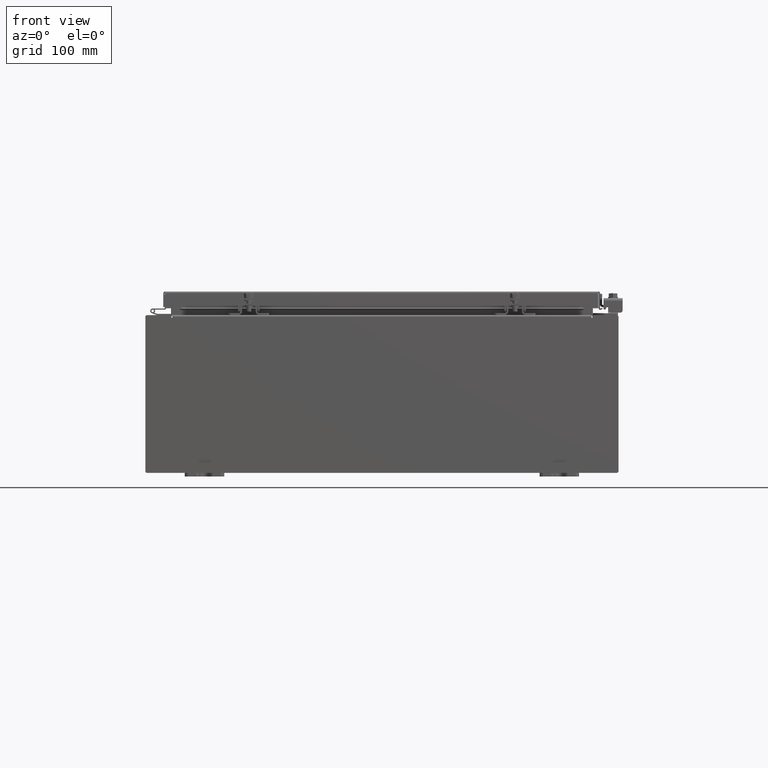
[diagram: clean part render]
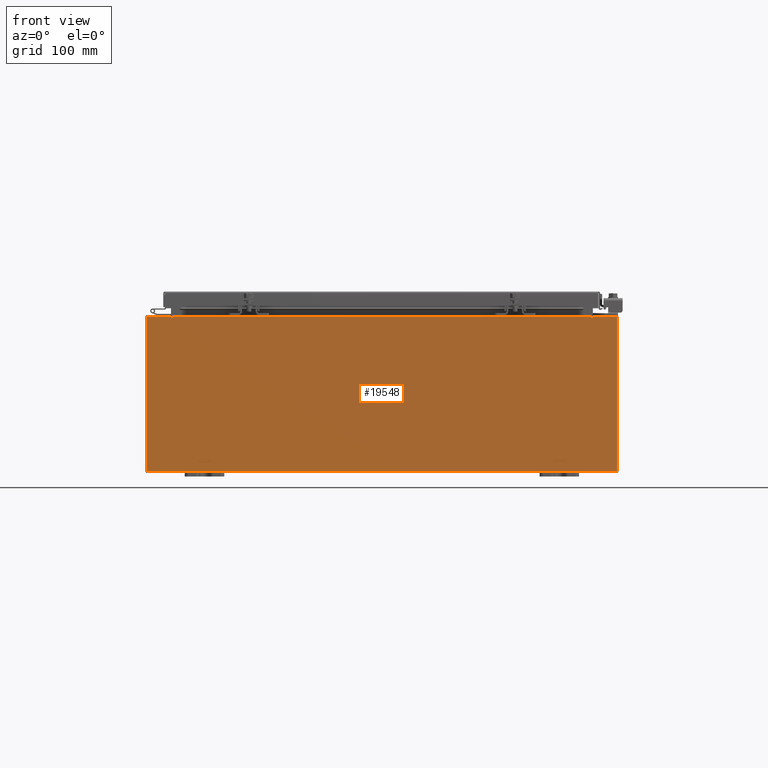
[diagram: same view with one face highlighted and labeled with its STEP entity id]
A machine part, front view. The second image highlights one B-rep face of the part: STEP entity #19548.
In plain terms, the highlighted planar face has unit normal (0, 1, -0).
Its self-contained STEP definition (entity closure, byte-faithful):
#285 = LINE ( 'NONE', #29721, #7047 ) ;
#970 = CARTESIAN_POINT ( 'NONE',  ( 11.92530000000000000, 0.0000000000000000000, 3.925300000000013800 ) ) ;
#1083 = DIRECTION ( 'NONE',  ( 1.000000000000000000, 3.225867722578232700E-016, 9.992007221626408900E-016 ) ) ;
#1207 = EDGE_CURVE ( 'NONE', #6455, #26388, #9352, .T. ) ;
#1700 = AXIS2_PLACEMENT_3D ( 'NONE', #26607, #3816, #21633 ) ;
#2052 = CARTESIAN_POINT ( 'NONE',  ( -11.92530000000000000, 0.0000000000000000000, 3.925299999999986700 ) ) ;
#3245 = DIRECTION ( 'NONE',  ( 1.000000000000000000, 3.225867722578232700E-016, 9.992007221626408900E-016 ) ) ;
#3624 = LINE ( 'NONE', #970, #16377 ) ;
#3816 = DIRECTION ( 'NONE',  ( -3.225867722578236700E-016, -1.000000000000000000, -2.013110121372518100E-016 ) ) ;
#4196 = CIRCLE ( 'NONE', #25568, 0.01867499999999949400 ) ;
#4510 = VERTEX_POINT ( 'NONE', #28172 ) ;
#4540 = CARTESIAN_POINT ( 'NONE',  ( 10.65587500000000200, 0.0000000000000000000, 3.874950000000012600 ) ) ;
#4613 = DIRECTION ( 'NONE',  ( 9.992007221626408900E-016, -2.013110121372521300E-016, 1.000000000000000000 ) ) ;
#4695 = CARTESIAN_POINT ( 'NONE',  ( -10.67455000000000200, 0.0000000000000000000, 3.874949999999993000 ) ) ;
#4705 = VECTOR ( 'NONE', #4613, 39.37007874015748100 ) ;
#4855 = CARTESIAN_POINT ( 'NONE',  ( -11.92530000000000000, 0.0000000000000000000, -3.925300000000012900 ) ) ;
#6291 = LINE ( 'NONE', #2052, #4705 ) ;
#6455 = VERTEX_POINT ( 'NONE', #29676 ) ;
#6866 = EDGE_CURVE ( 'NONE', #25807, #24355, #9511, .T. ) ;
#7047 = VECTOR ( 'NONE', #14519, 39.37007874015748100 ) ;
#7084 = DIRECTION ( 'NONE',  ( 0.0000000000000000000, 2.013110121372521000E-016, -1.000000000000000000 ) ) ;
#7261 = DIRECTION ( 'NONE',  ( 9.992007221626408900E-016, -2.013110121372521300E-016, 1.000000000000000000 ) ) ;
#7419 = DIRECTION ( 'NONE',  ( -1.000000000000000000, -3.225867722578232700E-016, -9.992007221626408900E-016 ) ) ;
#8277 = EDGE_CURVE ( 'NONE', #26388, #32245, #6291, .T. ) ;
#8797 = CIRCLE ( 'NONE', #12126, 0.01867499999999949400 ) ;
#9352 = LINE ( 'NONE', #4855, #28852 ) ;
#9511 = LINE ( 'NONE', #18503, #23044 ) ;
#10026 = EDGE_CURVE ( 'NONE', #21226, #4510, #4196, .T. ) ;
#10411 = CARTESIAN_POINT ( 'NONE',  ( -10.65587500000000200, 0.0000000000000000000, 3.874949999999993000 ) ) ;
#10418 = VERTEX_POINT ( 'NONE', #13991 ) ;
#10662 = LINE ( 'NONE', #17840, #16630 ) ;
#10679 = ORIENTED_EDGE ( 'NONE', *, *, #25739, .T. ) ;
#11268 = VERTEX_POINT ( 'NONE', #32282 ) ;
#11381 = EDGE_CURVE ( 'NONE', #4510, #11268, #29961, .T. ) ;
#11562 = LINE ( 'NONE', #12574, #18321 ) ;
#11635 = ORIENTED_EDGE ( 'NONE', *, *, #1207, .T. ) ;
#12126 = AXIS2_PLACEMENT_3D ( 'NONE', #10411, #28214, #12986 ) ;
#12355 = EDGE_CURVE ( 'NONE', #24355, #6455, #3624, .T. ) ;
#12440 = EDGE_CURVE ( 'NONE', #28440, #22031, #8797, .T. ) ;
#12574 = CARTESIAN_POINT ( 'NONE',  ( -10.63720000000000400, 0.0000000000000000000, -9.834652777191348400E-015 ) ) ;
#12863 = VECTOR ( 'NONE', #1083, 39.37007874015748100 ) ;
#12986 = DIRECTION ( 'NONE',  ( 0.0000000000000000000, 2.013110121372521000E-016, -1.000000000000000000 ) ) ;
#13809 = CARTESIAN_POINT ( 'NONE',  ( -11.92530000000000000, 0.0000000000000000000, 3.925299999999986700 ) ) ;
#13872 = CARTESIAN_POINT ( 'NONE',  ( -11.92530000000000000, 0.0000000000000000000, -3.925300000000012900 ) ) ;
#13991 = CARTESIAN_POINT ( 'NONE',  ( -10.67455000000000200, 0.0000000000000000000, 3.925299999999993400 ) ) ;
#14519 = DIRECTION ( 'NONE',  ( 9.992007221626408900E-016, -2.013110121372521300E-016, 1.000000000000000000 ) ) ;
#15041 = DIRECTION ( 'NONE',  ( 1.000000000000000000, 3.225867722578232700E-016, 9.992007221626408900E-016 ) ) ;
#15075 = FACE_OUTER_BOUND ( 'NONE', #22777, .T. ) ;
#16377 = VECTOR ( 'NONE', #28993, 39.37007874015748100 ) ;
#16630 = VECTOR ( 'NONE', #20413, 39.37007874015748100 ) ;
#17087 = CARTESIAN_POINT ( 'NONE',  ( -10.63720000000000400, 0.0000000000000000000, 3.912299999999993000 ) ) ;
#17770 = EDGE_CURVE ( 'NONE', #19817, #28440, #11562, .T. ) ;
#17840 = CARTESIAN_POINT ( 'NONE',  ( 10.67454999999983300, 0.0000000000000000000, -4.502085493558705900E-013 ) ) ;
#18167 = ORIENTED_EDGE ( 'NONE', *, *, #6866, .T. ) ;
#18321 = VECTOR ( 'NONE', #32874, 39.37007874015748100 ) ;
#18503 = CARTESIAN_POINT ( 'NONE',  ( -11.92530000000000000, 0.0000000000000000000, 3.925299999999986700 ) ) ;
#18746 = VECTOR ( 'NONE', #15041, 39.37007874015748100 ) ;
#18870 = CARTESIAN_POINT ( 'NONE',  ( -10.63720000000000400, 0.0000000000000000000, 3.874949999999993000 ) ) ;
#19053 = PLANE ( 'NONE',  #1700 ) ;
#19104 = CARTESIAN_POINT ( 'NONE',  ( 10.67455000000000200, 0.0000000000000000000, 3.925300000000012900 ) ) ;
#19472 = CARTESIAN_POINT ( 'NONE',  ( -11.92530000000000000, 0.0000000000000000000, 3.925299999999986700 ) ) ;
#19548 = ADVANCED_FACE ( 'NONE', ( #15075 ), #19053, .F. ) ;
#19609 = LINE ( 'NONE', #13809, #12863 ) ;
#19817 = VERTEX_POINT ( 'NONE', #17087 ) ;
#19993 = EDGE_CURVE ( 'NONE', #25807, #21226, #10662, .T. ) ;
#20163 = ORIENTED_EDGE ( 'NONE', *, *, #29064, .F. ) ;
#20413 = DIRECTION ( 'NONE',  ( -4.440492852616269000E-014, 2.013110121372381000E-016, -1.000000000000000000 ) ) ;
#21226 = VERTEX_POINT ( 'NONE', #21339 ) ;
#21339 = CARTESIAN_POINT ( 'NONE',  ( 10.67455000000000200, 0.0000000000000000000, 3.874950000000012600 ) ) ;
#21633 = DIRECTION ( 'NONE',  ( -9.992007221626408900E-016, 2.013110121372521300E-016, -1.000000000000000000 ) ) ;
#22031 = VERTEX_POINT ( 'NONE', #4695 ) ;
#22326 = DIRECTION ( 'NONE',  ( 3.225867722578232700E-016, 1.000000000000000000, -2.013110121372520500E-016 ) ) ;
#22399 = VECTOR ( 'NONE', #7261, 39.37007874015748100 ) ;
#22777 = EDGE_LOOP ( 'NONE', ( #20163, #32376, #23541, #25607, #27664, #28383, #28235, #18167, #30409, #11635, #31832, #10679 ) ) ;
#23044 = VECTOR ( 'NONE', #3245, 39.37007874015748100 ) ;
#23541 = ORIENTED_EDGE ( 'NONE', *, *, #17770, .F. ) ;
#24355 = VERTEX_POINT ( 'NONE', #30721 ) ;
#25568 = AXIS2_PLACEMENT_3D ( 'NONE', #4540, #22326, #7084 ) ;
#25607 = ORIENTED_EDGE ( 'NONE', *, *, #26725, .T. ) ;
#25739 = EDGE_CURVE ( 'NONE', #32245, #10418, #19609, .T. ) ;
#25807 = VERTEX_POINT ( 'NONE', #19104 ) ;
#26388 = VERTEX_POINT ( 'NONE', #13872 ) ;
#26607 = CARTESIAN_POINT ( 'NONE',  ( 0.0000000000000000000, 0.0000000000000000000, 0.0000000000000000000 ) ) ;
#26725 = EDGE_CURVE ( 'NONE', #19817, #11268, #27914, .T. ) ;
#27643 = CARTESIAN_POINT ( 'NONE',  ( 10.63720000000000400, 0.0000000000000000000, 9.834652777191348400E-015 ) ) ;
#27664 = ORIENTED_EDGE ( 'NONE', *, *, #11381, .F. ) ;
#27914 = LINE ( 'NONE', #32808, #18746 ) ;
#28172 = CARTESIAN_POINT ( 'NONE',  ( 10.63720000000000400, 0.0000000000000000000, 3.874950000000012600 ) ) ;
#28214 = DIRECTION ( 'NONE',  ( 3.225867722578232700E-016, 1.000000000000000000, -2.013110121372520500E-016 ) ) ;
#28235 = ORIENTED_EDGE ( 'NONE', *, *, #19993, .F. ) ;
#28383 = ORIENTED_EDGE ( 'NONE', *, *, #10026, .F. ) ;
#28440 = VERTEX_POINT ( 'NONE', #18870 ) ;
#28852 = VECTOR ( 'NONE', #7419, 39.37007874015748100 ) ;
#28993 = DIRECTION ( 'NONE',  ( -9.992007221626408900E-016, 2.013110121372521300E-016, -1.000000000000000000 ) ) ;
#29064 = EDGE_CURVE ( 'NONE', #22031, #10418, #285, .T. ) ;
#29676 = CARTESIAN_POINT ( 'NONE',  ( 11.92530000000000000, 0.0000000000000000000, -3.925299999999986700 ) ) ;
#29721 = CARTESIAN_POINT ( 'NONE',  ( -10.67455000000000200, 0.0000000000000000000, -9.834652777191348400E-015 ) ) ;
#29961 = LINE ( 'NONE', #27643, #22399 ) ;
#30409 = ORIENTED_EDGE ( 'NONE', *, *, #12355, .T. ) ;
#30721 = CARTESIAN_POINT ( 'NONE',  ( 11.92530000000000000, 0.0000000000000000000, 3.925300000000013800 ) ) ;
#31832 = ORIENTED_EDGE ( 'NONE', *, *, #8277, .T. ) ;
#32245 = VERTEX_POINT ( 'NONE', #19472 ) ;
#32282 = CARTESIAN_POINT ( 'NONE',  ( 10.63720000000000400, 0.0000000000000000000, 3.912300000000013000 ) ) ;
#32376 = ORIENTED_EDGE ( 'NONE', *, *, #12440, .F. ) ;
#32808 = CARTESIAN_POINT ( 'NONE',  ( -10.63720000000000400, 0.0000000000000000000, 3.912299999999993000 ) ) ;
#32874 = DIRECTION ( 'NONE',  ( -9.992007221626408900E-016, 2.013110121372521300E-016, -1.000000000000000000 ) ) ;